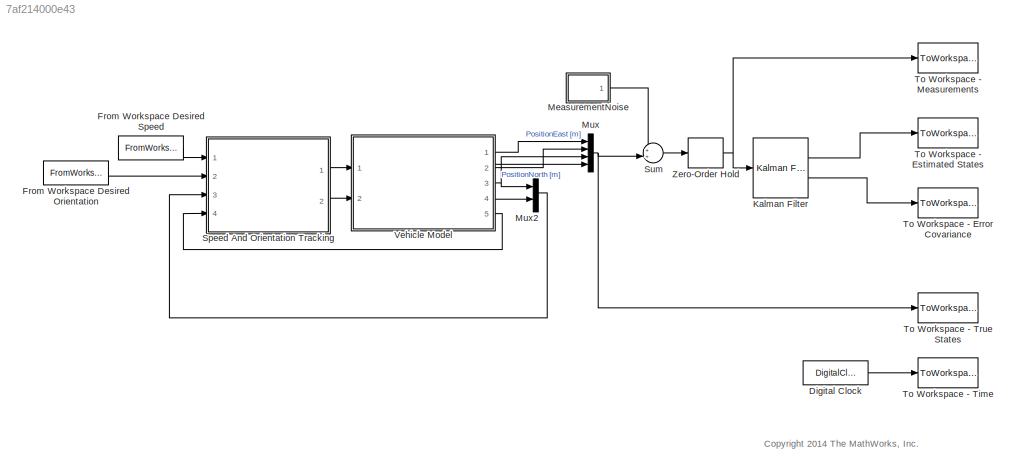
MODEL slx_7af214000e43
KIND model
CONFIG AbsTol = auto
CONFIG EnableMultiTasking = on
CONFIG FixedStep = auto
CONFIG MaxStep = 0.1
CONFIG MinStep = auto
CONFIG RelTol = 1e-3
CONFIG SampleTimeConstraint = Unconstrained
CONFIG SolverName = ode45
CONFIG StartTime = 0.0
CONFIG StopTime = tt(end)
WORKSPACE source: MATLAB code (in-file) + mxarray member
WORKSPACE L = 2.5
WORKSPACE v0 = 0
WORKSPACE xe0 = 0
WORKSPACE xn0 = 0
WORKSPACE theta0 = 0
WORKSPACE Ts = 1
WORKSPACE rr = [0 0 0 0 0 0 0 0 0 0 0 0 ... (9404 elements, 9404x1)]
WORKSPACE tt = [0 0.05 0.1 0.15 0.2 0.25 0.3 0.35 0.4 0.45 0.5 0.55 ... (9404 elements, 9404x1)]
WORKSPACE vv = [25 25 25 25 25 25 25 25 25 25 25 25 ... (9404 elements, 9404x1)]
BLOCK [DigitalClock] Digital Clock
  SampleTime = Ts
BLOCK [FromWorkspace] From Workspace Desired Orientation
  VariableName = [tt rr]
BLOCK [FromWorkspace] From Workspace Desired Speed
  NameLocation = top
  VariableName = [tt vv]
BLOCK [Reference] Kalman Filter  REF=ctrlSharedLib/Kalman Filter
  Ports = [1, 2]
  SourceBlock = ctrlSharedLib/Kalman Filter
  SourceProductBaseCode = CT,ID
  SourceType = ctrlKalmanFilter
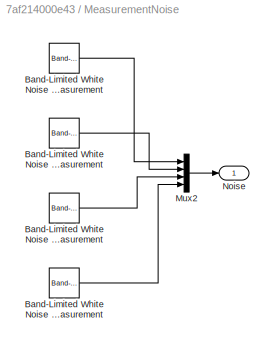
BLOCK [SubSystem] MeasurementNoise
  Ports = [0, 1]
  RequestExecContextInheritance = off
BLOCK [Reference] MeasurementNoise/Band-Limited White Noise East Position Measurement  REF=simulink/Sources/Band-Limited
White Noise
  Ports = [0, 1]
  SourceBlock = simulink/Sources/Band-Limited\nWhite Noise
  SourceProductBaseCode = SL
  SourceType = Band-Limited White Noise.
BLOCK [Reference] MeasurementNoise/Band-Limited White Noise East Velocity Measurement  REF=simulink/Sources/Band-Limited
White Noise
  Ports = [0, 1]
  SourceBlock = simulink/Sources/Band-Limited\nWhite Noise
  SourceProductBaseCode = SL
  SourceType = Band-Limited White Noise.
BLOCK [Reference] MeasurementNoise/Band-Limited White Noise North Position Measurement  REF=simulink/Sources/Band-Limited
White Noise
  Ports = [0, 1]
  SourceBlock = simulink/Sources/Band-Limited\nWhite Noise
  SourceProductBaseCode = SL
  SourceType = Band-Limited White Noise.
BLOCK [Reference] MeasurementNoise/Band-Limited White Noise North Velocity Measurement  REF=simulink/Sources/Band-Limited
White Noise
  Ports = [0, 1]
  SourceBlock = simulink/Sources/Band-Limited\nWhite Noise
  SourceProductBaseCode = SL
  SourceType = Band-Limited White Noise.
BLOCK [Mux] MeasurementNoise/Mux2
  DisplayOption = bar
  Ports = [4, 1]
BLOCK [Outport] MeasurementNoise/Noise
BLOCK [Mux] Mux
  DisplayOption = bar
  Ports = [4, 1]
BLOCK [Mux] Mux2
  DisplayOption = bar
  Inputs = 2
  Ports = [2, 1]
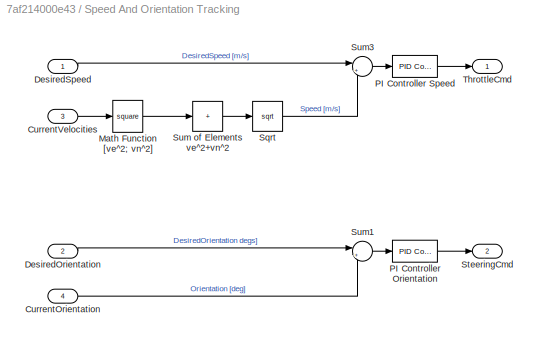
BLOCK [SubSystem] Speed And Orientation Tracking
  Ports = [4, 2]
  RequestExecContextInheritance = off
BLOCK [Inport] Speed And Orientation Tracking/CurrentOrientation
  Port = 4
BLOCK [Inport] Speed And Orientation Tracking/CurrentVelocities
  Port = 3
BLOCK [Inport] Speed And Orientation Tracking/DesiredOrientation
  Port = 2
BLOCK [Inport] Speed And Orientation Tracking/DesiredSpeed
BLOCK [Math] Speed And Orientation Tracking/Math Function [ve^2; vn^2]
  Operator = square
  Ports = [1, 1]
  SignedPower = on
BLOCK [Reference] Speed And Orientation Tracking/PI Controller Orientation  REF=pid_lib/PID Controller
  Ports = [1, 1]
  SourceBlock = pid_lib/PID Controller
  SourceProductBaseCode = SL
  SourceType = PID 1dof
BLOCK [Reference] Speed And Orientation Tracking/PI Controller Speed  REF=pid_lib/PID Controller
  Ports = [1, 1]
  SourceBlock = pid_lib/PID Controller
  SourceProductBaseCode = SL
  SourceType = PID 1dof
BLOCK [Sqrt] Speed And Orientation Tracking/Sqrt
BLOCK [Outport] Speed And Orientation Tracking/SteeringCmd
  Port = 2
BLOCK [Sum] Speed And Orientation Tracking/Sum of Elements ve^2+vn^2
  IconShape = rectangular
  Inputs = +
  Ports = [1, 1]
BLOCK [Sum] Speed And Orientation Tracking/Sum1
  Inputs = |+-
  Ports = [2, 1]
BLOCK [Sum] Speed And Orientation Tracking/Sum3
  Inputs = |+-
  Ports = [2, 1]
BLOCK [Outport] Speed And Orientation Tracking/ThrottleCmd
BLOCK [Sum] Sum
  Inputs = ++|
  Ports = [2, 1]
BLOCK [ToWorkspace] To Workspace - Error Covariance
  FixptAsFi = on
  MaxDataPoints = inf
  Ports = [1]
  SampleTime = -1
  VariableName = Z
BLOCK [ToWorkspace] To Workspace - Estimated States
  FixptAsFi = on
  MaxDataPoints = inf
  Ports = [1]
  SampleTime = -1
  Save2DSignal = 2-D array (concatenate along first dimension)
  VariableName = xhat
BLOCK [ToWorkspace] To Workspace - Measurements
  FixptAsFi = on
  MaxDataPoints = inf
  Ports = [1]
  SampleTime = Ts
  Save2DSignal = 2-D array (concatenate along first dimension)
  VariableName = y
BLOCK [ToWorkspace] To Workspace - Time
  FixptAsFi = on
  MaxDataPoints = inf
  Ports = [1]
  SampleTime = -1
  Save2DSignal = 2-D array (concatenate along first dimension)
  VariableName = t
BLOCK [ToWorkspace] To Workspace - True States
  FixptAsFi = on
  MaxDataPoints = inf
  Ports = [1]
  SampleTime = Ts
  Save2DSignal = 2-D array (concatenate along first dimension)
  VariableName = x
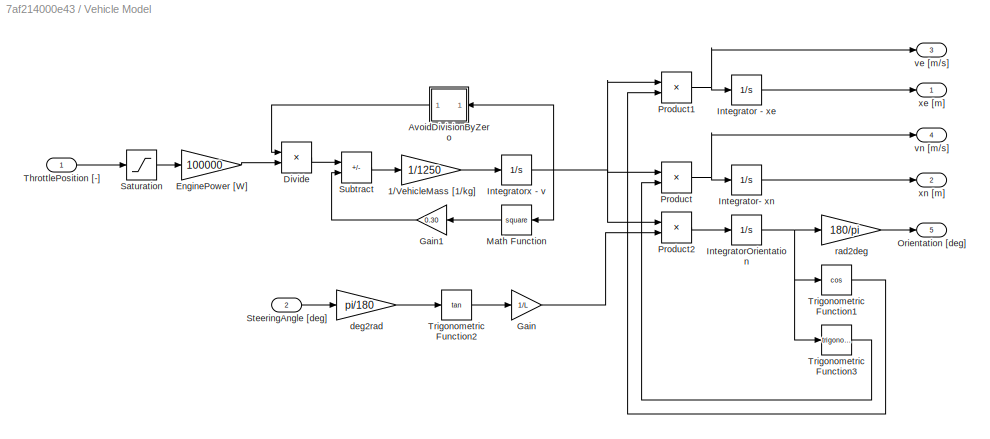
BLOCK [SubSystem] Vehicle Model
  Ports = [2, 5]
  RequestExecContextInheritance = off
BLOCK [Gain] Vehicle Model/1//VehicleMass [1//kg]
  Gain = 1/1250
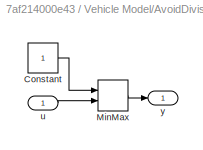
BLOCK [SubSystem] Vehicle Model/AvoidDivisionByZero
  Ports = [1, 1]
  RequestExecContextInheritance = off
BLOCK [Constant] Vehicle Model/AvoidDivisionByZero/Constant
BLOCK [MinMax] Vehicle Model/AvoidDivisionByZero/MinMax
  Function = max
  Inputs = 2
  Ports = [2, 1]
BLOCK [Inport] Vehicle Model/AvoidDivisionByZero/u
BLOCK [Outport] Vehicle Model/AvoidDivisionByZero/y
BLOCK [Product] Vehicle Model/Divide
  Inputs = /*
  Ports = [2, 1]
BLOCK [Gain] Vehicle Model/EnginePower [W]
  Gain = 100000
BLOCK [Gain] Vehicle Model/Gain
  Gain = 1/L
BLOCK [Gain] Vehicle Model/Gain1
  Gain = 0.30
BLOCK [Integrator] Vehicle Model/Integrator - xe
  InitialCondition = xe0
  Ports = [1, 1]
BLOCK [Integrator] Vehicle Model/Integrator- xn
  InitialCondition = xn0
  Ports = [1, 1]
BLOCK [Integrator] Vehicle Model/IntegratorOrientation
  InitialCondition = theta0
  Ports = [1, 1]
BLOCK [Integrator] Vehicle Model/Integratorx - v
  InitialCondition = v0
  Ports = [1, 1]
BLOCK [Math] Vehicle Model/Math Function
  Operator = square
  Ports = [1, 1]
  SignedPower = on
BLOCK [Outport] Vehicle Model/Orientation [deg]
  Port = 5
BLOCK [Product] Vehicle Model/Product
  Ports = [2, 1]
BLOCK [Product] Vehicle Model/Product1
  Ports = [2, 1]
BLOCK [Product] Vehicle Model/Product2
  Ports = [2, 1]
BLOCK [Saturate] Vehicle Model/Saturation
  LowerLimit = -1
  UpperLimit = 1
BLOCK [Inport] Vehicle Model/SteeringAngle [deg] 
  Port = 2
BLOCK [Sum] Vehicle Model/Subtract
  IconShape = rectangular
  Inputs = +-
  Ports = [2, 1]
BLOCK [Inport] Vehicle Model/ThrottlePosition [-]
BLOCK [Trigonometry] Vehicle Model/Trigonometric Function1
  Operator = cos
  Ports = [1, 1]
BLOCK [Trigonometry] Vehicle Model/Trigonometric Function2
  Operator = tan
  Ports = [1, 1]
BLOCK [Trigonometry] Vehicle Model/Trigonometric Function3
  Ports = [1, 1]
BLOCK [Gain] Vehicle Model/deg2rad
  Gain = pi/180
BLOCK [Gain] Vehicle Model/rad2deg
  Gain = 180/pi
BLOCK [Outport] Vehicle Model/ve [m//s]
  Port = 3
BLOCK [Outport] Vehicle Model/vn [m//s]
  Port = 4
BLOCK [Outport] Vehicle Model/xe [m]
BLOCK [Outport] Vehicle Model/xn [m]
  Port = 2
BLOCK [ZeroOrderHold] Zero-Order Hold
  SampleTime = Ts
ANNOTATION (root): <copyright redacted>
LINE Digital Clock:1 -> To Workspace - Time:1
LINE From Workspace Desired Orientation:1 -> Speed And Orientation Tracking:2
LINE From Workspace Desired Speed:1 -> Speed And Orientation Tracking:1
LINE Kalman Filter:1 -> To Workspace - Estimated States:1
LINE Kalman Filter:2 -> To Workspace - Error Covariance:1
LINE MeasurementNoise/Band-Limited White Noise East Position Measurement:1 -> MeasurementNoise/Mux2:1
LINE MeasurementNoise/Band-Limited White Noise East Velocity Measurement:1 -> MeasurementNoise/Mux2:3
LINE MeasurementNoise/Band-Limited White Noise North Position Measurement:1 -> MeasurementNoise/Mux2:2
LINE MeasurementNoise/Band-Limited White Noise North Velocity Measurement:1 -> MeasurementNoise/Mux2:4
LINE MeasurementNoise/Mux2:1 -> MeasurementNoise/Noise:1
LINE MeasurementNoise:1 -> Sum:1
LINE Mux2:1 -> Speed And Orientation Tracking:3
NET Mux:1 -> Sum:2, To Workspace - True States:1
LINE Speed And Orientation Tracking/CurrentOrientation:1 -> Speed And Orientation Tracking/Sum1:2
LINE Speed And Orientation Tracking/CurrentVelocities:1 -> Speed And Orientation Tracking/Math Function [ve^2; vn^2]:1
LINE Speed And Orientation Tracking/DesiredOrientation:1 -> Speed And Orientation Tracking/Sum1:1
LINE Speed And Orientation Tracking/DesiredSpeed:1 -> Speed And Orientation Tracking/Sum3:1
LINE Speed And Orientation Tracking/Math Function [ve^2; vn^2]:1 -> Speed And Orientation Tracking/Sum of Elements ve^2+vn^2:1
LINE Speed And Orientation Tracking/PI Controller Orientation:1 -> Speed And Orientation Tracking/SteeringCmd:1
LINE Speed And Orientation Tracking/PI Controller Speed:1 -> Speed And Orientation Tracking/ThrottleCmd:1
LINE Speed And Orientation Tracking/Sqrt:1 -> Speed And Orientation Tracking/Sum3:2
LINE Speed And Orientation Tracking/Sum of Elements ve^2+vn^2:1 -> Speed And Orientation Tracking/Sqrt:1
LINE Speed And Orientation Tracking/Sum1:1 -> Speed And Orientation Tracking/PI Controller Orientation:1
LINE Speed And Orientation Tracking/Sum3:1 -> Speed And Orientation Tracking/PI Controller Speed:1
LINE Speed And Orientation Tracking:1 -> Vehicle Model:1
LINE Speed And Orientation Tracking:2 -> Vehicle Model:2
LINE Sum:1 -> Zero-Order Hold:1
LINE Vehicle Model/1//VehicleMass [1//kg]:1 -> Vehicle Model/Integratorx - v:1
LINE Vehicle Model/AvoidDivisionByZero/Constant:1 -> Vehicle Model/AvoidDivisionByZero/MinMax:1
LINE Vehicle Model/AvoidDivisionByZero/MinMax:1 -> Vehicle Model/AvoidDivisionByZero/y:1
LINE Vehicle Model/AvoidDivisionByZero/u:1 -> Vehicle Model/AvoidDivisionByZero/MinMax:2
LINE Vehicle Model/AvoidDivisionByZero:1 -> Vehicle Model/Divide:1
LINE Vehicle Model/Divide:1 -> Vehicle Model/Subtract:1
LINE Vehicle Model/EnginePower [W]:1 -> Vehicle Model/Divide:2
LINE Vehicle Model/Gain1:1 -> Vehicle Model/Subtract:2
LINE Vehicle Model/Gain:1 -> Vehicle Model/Product2:2
LINE Vehicle Model/Integrator - xe:1 -> Vehicle Model/xe [m]:1
LINE Vehicle Model/Integrator- xn:1 -> Vehicle Model/xn [m]:1
NET Vehicle Model/IntegratorOrientation:1 -> Vehicle Model/Trigonometric Function1:1, Vehicle Model/Trigonometric Function3:1, Vehicle Model/rad2deg:1
NET Vehicle Model/Integratorx - v:1 -> Vehicle Model/AvoidDivisionByZero:1, Vehicle Model/Math Function:1, Vehicle Model/Product1:1, Vehicle Model/Product2:1, Vehicle Model/Product:1
LINE Vehicle Model/Math Function:1 -> Vehicle Model/Gain1:1
NET Vehicle Model/Product1:1 -> Vehicle Model/Integrator - xe:1, Vehicle Model/ve [m//s]:1
LINE Vehicle Model/Product2:1 -> Vehicle Model/IntegratorOrientation:1
NET Vehicle Model/Product:1 -> Vehicle Model/Integrator- xn:1, Vehicle Model/vn [m//s]:1
LINE Vehicle Model/Saturation:1 -> Vehicle Model/EnginePower [W]:1
LINE Vehicle Model/SteeringAngle [deg] :1 -> Vehicle Model/deg2rad:1
LINE Vehicle Model/Subtract:1 -> Vehicle Model/1//VehicleMass [1//kg]:1
LINE Vehicle Model/ThrottlePosition [-]:1 -> Vehicle Model/Saturation:1
LINE Vehicle Model/Trigonometric Function1:1 -> Vehicle Model/Product1:2
LINE Vehicle Model/Trigonometric Function2:1 -> Vehicle Model/Gain:1
LINE Vehicle Model/Trigonometric Function3:1 -> Vehicle Model/Product:2
LINE Vehicle Model/deg2rad:1 -> Vehicle Model/Trigonometric Function2:1
LINE Vehicle Model/rad2deg:1 -> Vehicle Model/Orientation [deg]:1
LINE Vehicle Model:1 -> Mux:1
LINE Vehicle Model:2 -> Mux:2
NET Vehicle Model:3 -> Mux2:1, Mux:3
NET Vehicle Model:4 -> Mux2:2, Mux:4
LINE Vehicle Model:5 -> Speed And Orientation Tracking:4
NET Zero-Order Hold:1 -> Kalman Filter:1, To Workspace - Measurements:1
note: NET lines group one-source signal fan-out (src -> all destinations, sorted); 1:1 wires keep LINE
